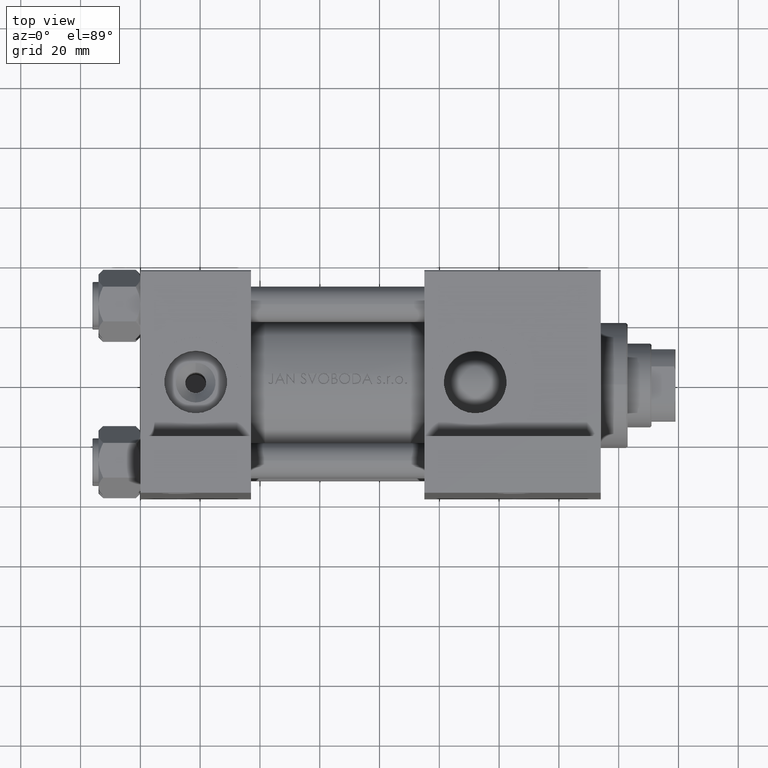
[diagram: clean part render]
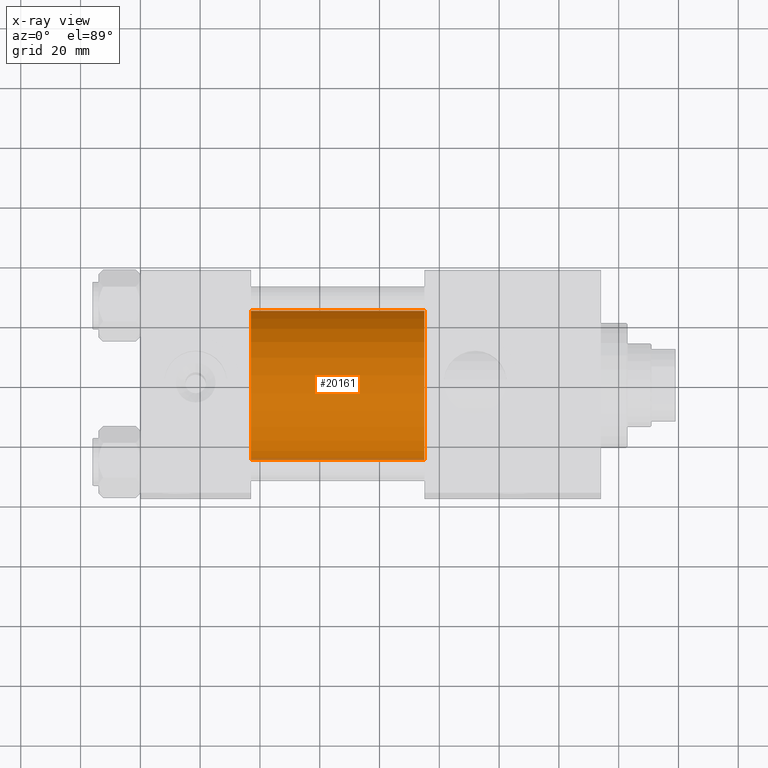
[diagram: x-ray — body ghosted, one internal face saturated and labeled with its STEP entity id]
A machine part, top view, then the same camera in x-ray: the body is ghosted and one INTERNAL B-rep face — a face not visible from any outside direction — is saturated and labeled: STEP entity #20161.
In plain terms, the highlighted cylindrical surface (partial cylindrical patch) has radius 25 mm, axis along (-1, -0, 0).
Its self-contained STEP definition (entity closure, byte-faithful):
#363 = CARTESIAN_POINT ( 'NONE',  ( 95.00000000000000000, 0.000000000000000000, 24.50000000000000000 ) ) ;
#1545 = CARTESIAN_POINT ( 'NONE',  ( 95.00000000000000000, 3.061616997868382254E-15, -25.50000000000000355 ) ) ;
#1614 = DIRECTION ( 'NONE',  ( -1.000000000000000000, -0.000000000000000000, -0.000000000000000000 ) ) ;
#2436 = FACE_OUTER_BOUND ( 'NONE', #42761, .T. ) ;
#5736 = AXIS2_PLACEMENT_3D ( 'NONE', #48314, #17974, #44568 ) ;
#10520 = CARTESIAN_POINT ( 'NONE',  ( 37.00000000000000000, 0.000000000000000000, 24.50000000000000000 ) ) ;
#10920 = DIRECTION ( 'NONE',  ( 0.000000000000000000, 0.000000000000000000, -1.000000000000000000 ) ) ;
#11278 = EDGE_CURVE ( 'NONE', #41478, #32070, #21648, .T. ) ;
#11819 = CARTESIAN_POINT ( 'NONE',  ( 37.00000000000000000, 0.000000000000000000, -0.5000000000000004441 ) ) ;
#13227 = VERTEX_POINT ( 'NONE', #363 ) ;
#14633 = EDGE_CURVE ( 'NONE', #13227, #34196, #32165, .T. ) ;
#16108 = AXIS2_PLACEMENT_3D ( 'NONE', #22192, #37497, #10920 ) ;
#17204 = VECTOR ( 'NONE', #1614, 1000.000000000000000 ) ;
#17974 = DIRECTION ( 'NONE',  ( -1.000000000000000000, -0.000000000000000000, -0.000000000000000000 ) ) ;
#20146 = CARTESIAN_POINT ( 'NONE',  ( 95.00000000000000000, 0.000000000000000000, 24.50000000000000000 ) ) ;
#20161 = ADVANCED_FACE ( 'NONE', ( #2436 ), #33022, .F. ) ;
#20872 = DIRECTION ( 'NONE',  ( -1.000000000000000000, -0.000000000000000000, -0.000000000000000000 ) ) ;
#21624 = EDGE_CURVE ( 'NONE', #34196, #32070, #34651, .T. ) ;
#21648 = LINE ( 'NONE', #36955, #17204 ) ;
#22192 = CARTESIAN_POINT ( 'NONE',  ( 95.00000000000000000, 0.000000000000000000, -0.5000000000000004441 ) ) ;
#27446 = AXIS2_PLACEMENT_3D ( 'NONE', #11819, #42155, #31116 ) ;
#29623 = ORIENTED_EDGE ( 'NONE', *, *, #21624, .F. ) ;
#31116 = DIRECTION ( 'NONE',  ( 0.000000000000000000, 0.000000000000000000, -1.000000000000000000 ) ) ;
#31178 = VECTOR ( 'NONE', #20872, 1000.000000000000000 ) ;
#32070 = VERTEX_POINT ( 'NONE', #48615 ) ;
#32165 = LINE ( 'NONE', #20146, #31178 ) ;
#33022 = CYLINDRICAL_SURFACE ( 'NONE', #5736, 25.00000000000000000 ) ;
#34196 = VERTEX_POINT ( 'NONE', #10520 ) ;
#34651 = CIRCLE ( 'NONE', #27446, 25.00000000000000000 ) ;
#36955 = CARTESIAN_POINT ( 'NONE',  ( 95.00000000000000000, 3.061616997868382254E-15, -25.50000000000000355 ) ) ;
#37497 = DIRECTION ( 'NONE',  ( 1.000000000000000000, 0.000000000000000000, 0.000000000000000000 ) ) ;
#37738 = CIRCLE ( 'NONE', #16108, 25.00000000000000000 ) ;
#40245 = ORIENTED_EDGE ( 'NONE', *, *, #11278, .T. ) ;
#40848 = ORIENTED_EDGE ( 'NONE', *, *, #48354, .T. ) ;
#41478 = VERTEX_POINT ( 'NONE', #1545 ) ;
#42155 = DIRECTION ( 'NONE',  ( 1.000000000000000000, 0.000000000000000000, 0.000000000000000000 ) ) ;
#42761 = EDGE_LOOP ( 'NONE', ( #40848, #40245, #29623, #49412 ) ) ;
#44568 = DIRECTION ( 'NONE',  ( 0.000000000000000000, 0.000000000000000000, 1.000000000000000000 ) ) ;
#48314 = CARTESIAN_POINT ( 'NONE',  ( 95.00000000000000000, 0.000000000000000000, -0.5000000000000004441 ) ) ;
#48354 = EDGE_CURVE ( 'NONE', #13227, #41478, #37738, .T. ) ;
#48615 = CARTESIAN_POINT ( 'NONE',  ( 37.00000000000000000, 3.061616997868382254E-15, -25.50000000000000355 ) ) ;
#49412 = ORIENTED_EDGE ( 'NONE', *, *, #14633, .F. ) ;